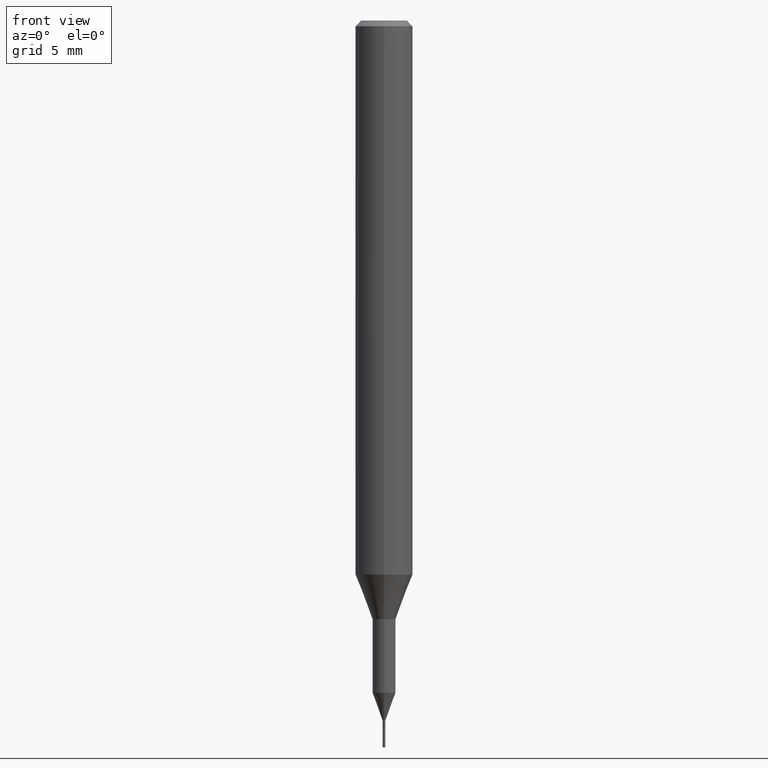
[diagram: clean part render]
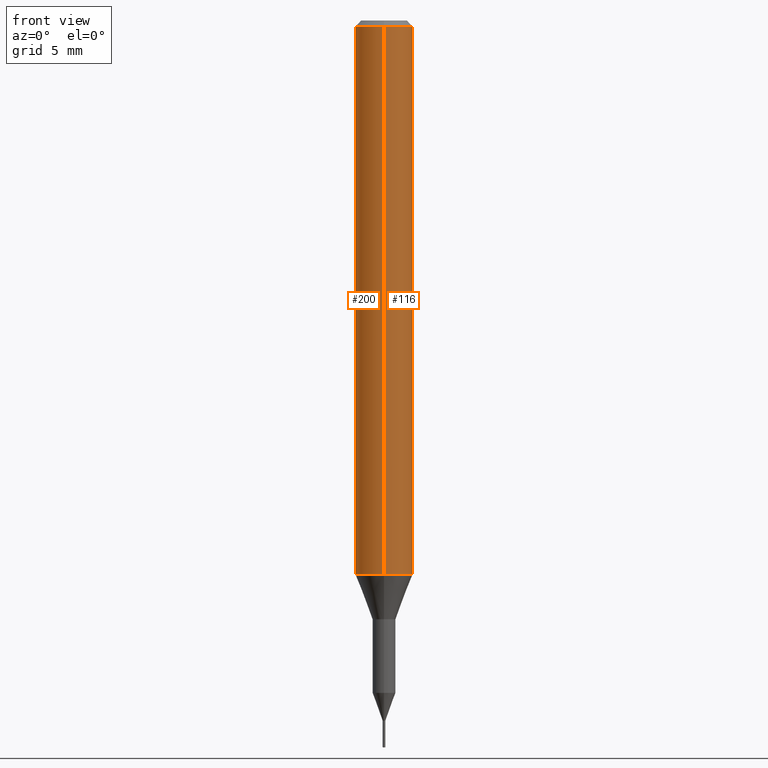
[diagram: same view with one multi-face feature highlighted, each face labeled with its STEP entity id]
A machine part, front view. The highlighted faces form ONE feature: a constant-radius fillet chain: 2 tangent blend faces with common blend radius 1.5 mm. The faces share edges in the B-rep.
Their STEP definitions:
[1] entity #116 (Cylinder):
#116=ADVANCED_FACE('',(#294),#295,.T.);
#120=VERTEX_POINT('',#299);
#122=EDGE_CURVE('',#120,#140,#301,.T.);
#134=VERTEX_POINT('',#316);
#140=VERTEX_POINT('',#323);
#144=VERTEX_POINT('',#327);
#146=EDGE_CURVE('',#144,#134,#329,.T.);
#198=EDGE_CURVE('',#120,#134,#386,.T.);
#240=EDGE_CURVE('',#140,#144,#434,.T.);
#294=FACE_OUTER_BOUND('',#484,.T.);
#295=CYLINDRICAL_SURFACE('',#485,1.5);
#299=CARTESIAN_POINT('',(0.0,1.5,-0.300000000000001));
#301=LINE('',#494,#495);
#316=CARTESIAN_POINT('',(1.83690953073357E-016,-1.5,-0.300000000000001));
#323=CARTESIAN_POINT('',(0.0,1.5,-28.955));
#327=CARTESIAN_POINT('',(1.83690953073357E-016,-1.5,-28.955));
#329=LINE('',#527,#528);
#386=CIRCLE('',#605,1.5);
#434=CIRCLE('',#664,1.5);
#484=EDGE_LOOP('',(#716,#717,#718,#719));
#485=AXIS2_PLACEMENT_3D('',#720,#721,#722);
#494=CARTESIAN_POINT('',(-1.83690953073357E-016,1.5,-14.6275));
#495=VECTOR('',#724,1.0);
#527=CARTESIAN_POINT('',(1.83690953073357E-016,-1.5,-14.6275));
#528=VECTOR('',#760,1.0);
#605=AXIS2_PLACEMENT_3D('',#826,#827,#828);
#664=AXIS2_PLACEMENT_3D('',#896,#897,#898);
#716=ORIENTED_EDGE('',*,*,#122,.F.);
#717=ORIENTED_EDGE('',*,*,#198,.T.);
#718=ORIENTED_EDGE('',*,*,#146,.F.);
#719=ORIENTED_EDGE('',*,*,#240,.F.);
#720=CARTESIAN_POINT('',(0.0,0.0,-14.6275));
#721=DIRECTION('',(-0.0,-0.0,1.0));
#722=DIRECTION('',(0.0,1.0,0.0));
#724=DIRECTION('',(0.0,0.0,-1.0));
#760=DIRECTION('',(-0.0,-0.0,1.0));
#826=CARTESIAN_POINT('',(0.0,0.0,-0.300000000000001));
#827=DIRECTION('',(0.0,0.0,-1.0));
#828=DIRECTION('',(0.0,1.0,0.0));
#896=CARTESIAN_POINT('',(0.0,0.0,-28.955));
#897=DIRECTION('',(0.0,0.0,-1.0));
#898=DIRECTION('',(0.0,1.0,0.0));
[2] entity #200 (Cylinder):
#120=VERTEX_POINT('',#299);
#122=EDGE_CURVE('',#120,#140,#301,.T.);
#134=VERTEX_POINT('',#316);
#140=VERTEX_POINT('',#323);
#144=VERTEX_POINT('',#327);
#146=EDGE_CURVE('',#144,#134,#329,.T.);
#200=ADVANCED_FACE('',(#388),#389,.T.);
#208=EDGE_CURVE('',#144,#140,#397,.T.);
#244=EDGE_CURVE('',#134,#120,#440,.T.);
#299=CARTESIAN_POINT('',(0.0,1.5,-0.300000000000001));
#301=LINE('',#494,#495);
#316=CARTESIAN_POINT('',(1.83690953073357E-016,-1.5,-0.300000000000001));
#323=CARTESIAN_POINT('',(0.0,1.5,-28.955));
#327=CARTESIAN_POINT('',(1.83690953073357E-016,-1.5,-28.955));
#329=LINE('',#527,#528);
#388=FACE_OUTER_BOUND('',#607,.T.);
#389=CYLINDRICAL_SURFACE('',#608,1.5);
#397=CIRCLE('',#619,1.5);
#440=CIRCLE('',#671,1.5);
#494=CARTESIAN_POINT('',(-1.83690953073357E-016,1.5,-14.6275));
#495=VECTOR('',#724,1.0);
#527=CARTESIAN_POINT('',(1.83690953073357E-016,-1.5,-14.6275));
#528=VECTOR('',#760,1.0);
#607=EDGE_LOOP('',(#830,#831,#832,#833));
#608=AXIS2_PLACEMENT_3D('',#834,#835,#836);
#619=AXIS2_PLACEMENT_3D('',#843,#844,#845);
#671=AXIS2_PLACEMENT_3D('',#907,#908,#909);
#724=DIRECTION('',(0.0,0.0,-1.0));
#760=DIRECTION('',(-0.0,-0.0,1.0));
#830=ORIENTED_EDGE('',*,*,#122,.T.);
#831=ORIENTED_EDGE('',*,*,#208,.F.);
#832=ORIENTED_EDGE('',*,*,#146,.T.);
#833=ORIENTED_EDGE('',*,*,#244,.T.);
#834=CARTESIAN_POINT('',(0.0,0.0,-14.6275));
#835=DIRECTION('',(-0.0,-0.0,1.0));
#836=DIRECTION('',(0.0,1.0,0.0));
#843=CARTESIAN_POINT('',(0.0,0.0,-28.955));
#844=DIRECTION('',(0.0,0.0,-1.0));
#845=DIRECTION('',(0.0,1.0,0.0));
#907=CARTESIAN_POINT('',(0.0,0.0,-0.300000000000001));
#908=DIRECTION('',(0.0,0.0,-1.0));
#909=DIRECTION('',(0.0,1.0,0.0));